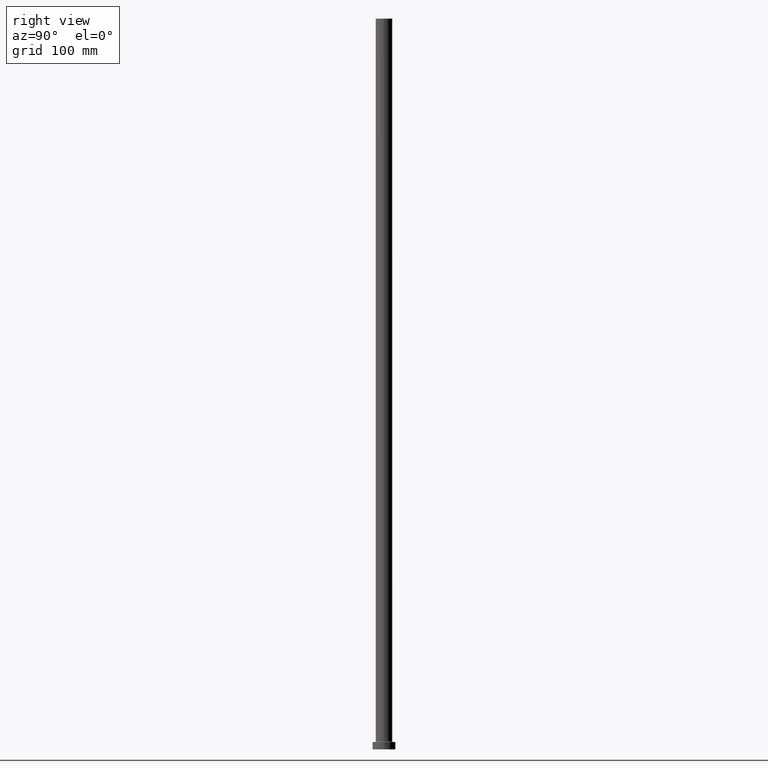
[diagram: clean part render]
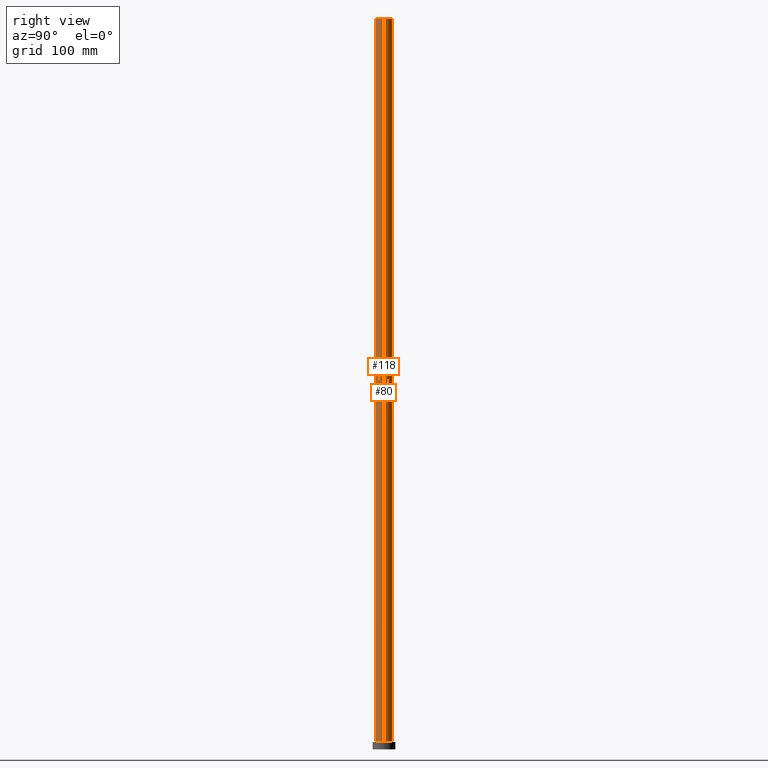
[diagram: same view with one multi-face feature highlighted, each face labeled with its STEP entity id]
A machine part, right view. The highlighted faces form ONE feature: a constant-radius fillet chain: 2 tangent blend faces with common blend radius 8 mm. The faces share edges in the B-rep.
Their STEP definitions:
[1] entity #80 (Cylinder):
#34 = CARTESIAN_POINT ( 'NONE',  ( 8.000000000000000000, 9.797174393178825657E-16, 700.0000000000000000 ) ) ;
#35 = VERTEX_POINT ( 'NONE', #205 ) ;
#38 = VECTOR ( 'NONE', #457, 1000.000000000000000 ) ;
#78 = DIRECTION ( 'NONE',  ( 0.000000000000000000, 0.000000000000000000, 1.000000000000000000 ) ) ;
#80 = ADVANCED_FACE ( 'NONE', ( #431 ), #113, .T. ) ;
#81 = CARTESIAN_POINT ( 'NONE',  ( 8.000000000000000000, 9.797174393178825657E-16, 7.700000000000040146 ) ) ;
#90 = AXIS2_PLACEMENT_3D ( 'NONE', #372, #341, #378 ) ;
#107 = AXIS2_PLACEMENT_3D ( 'NONE', #401, #78, #261 ) ;
#111 = CARTESIAN_POINT ( 'NONE',  ( 8.000000000000000000, 9.797174393178825657E-16, 700.0000000000000000 ) ) ;
#113 = CYLINDRICAL_SURFACE ( 'NONE', #247, 8.000000000000000000 ) ;
#121 = DIRECTION ( 'NONE',  ( -0.000000000000000000, -0.000000000000000000, -1.000000000000000000 ) ) ;
#122 = VECTOR ( 'NONE', #121, 1000.000000000000000 ) ;
#141 = LINE ( 'NONE', #382, #122 ) ;
#171 = VERTEX_POINT ( 'NONE', #34 ) ;
#175 = EDGE_LOOP ( 'NONE', ( #390, #202, #421, #354 ) ) ;
#183 = EDGE_CURVE ( 'NONE', #35, #307, #141, .T. ) ;
#185 = LINE ( 'NONE', #111, #38 ) ;
#186 = EDGE_CURVE ( 'NONE', #171, #455, #185, .T. ) ;
#200 = EDGE_CURVE ( 'NONE', #455, #307, #340, .T. ) ;
#202 = ORIENTED_EDGE ( 'NONE', *, *, #186, .T. ) ;
#205 = CARTESIAN_POINT ( 'NONE',  ( -8.000000000000000000, 0.000000000000000000, 700.0000000000000000 ) ) ;
#247 = AXIS2_PLACEMENT_3D ( 'NONE', #258, #398, #400 ) ;
#258 = CARTESIAN_POINT ( 'NONE',  ( 0.000000000000000000, 0.000000000000000000, 700.0000000000000000 ) ) ;
#261 = DIRECTION ( 'NONE',  ( 1.000000000000000000, 0.000000000000000000, 0.000000000000000000 ) ) ;
#265 = CIRCLE ( 'NONE', #107, 8.000000000000000000 ) ;
#307 = VERTEX_POINT ( 'NONE', #381 ) ;
#340 = CIRCLE ( 'NONE', #90, 8.000000000000000000 ) ;
#341 = DIRECTION ( 'NONE',  ( 0.000000000000000000, 0.000000000000000000, 1.000000000000000000 ) ) ;
#354 = ORIENTED_EDGE ( 'NONE', *, *, #183, .F. ) ;
#372 = CARTESIAN_POINT ( 'NONE',  ( 0.000000000000000000, 0.000000000000000000, 7.700000000000040146 ) ) ;
#378 = DIRECTION ( 'NONE',  ( 1.000000000000000000, 0.000000000000000000, 0.000000000000000000 ) ) ;
#381 = CARTESIAN_POINT ( 'NONE',  ( -8.000000000000000000, 0.000000000000000000, 7.700000000000040146 ) ) ;
#382 = CARTESIAN_POINT ( 'NONE',  ( -8.000000000000000000, 0.000000000000000000, 700.0000000000000000 ) ) ;
#390 = ORIENTED_EDGE ( 'NONE', *, *, #445, .F. ) ;
#398 = DIRECTION ( 'NONE',  ( -0.000000000000000000, -0.000000000000000000, -1.000000000000000000 ) ) ;
#400 = DIRECTION ( 'NONE',  ( -1.000000000000000000, 0.000000000000000000, 0.000000000000000000 ) ) ;
#401 = CARTESIAN_POINT ( 'NONE',  ( 0.000000000000000000, 0.000000000000000000, 700.0000000000000000 ) ) ;
#421 = ORIENTED_EDGE ( 'NONE', *, *, #200, .T. ) ;
#431 = FACE_OUTER_BOUND ( 'NONE', #175, .T. ) ;
#445 = EDGE_CURVE ( 'NONE', #171, #35, #265, .T. ) ;
#455 = VERTEX_POINT ( 'NONE', #81 ) ;
#457 = DIRECTION ( 'NONE',  ( -0.000000000000000000, -0.000000000000000000, -1.000000000000000000 ) ) ;
[2] entity #118 (Cylinder):
#31 = EDGE_CURVE ( 'NONE', #307, #455, #145, .T. ) ;
#34 = CARTESIAN_POINT ( 'NONE',  ( 8.000000000000000000, 9.797174393178825657E-16, 700.0000000000000000 ) ) ;
#35 = VERTEX_POINT ( 'NONE', #205 ) ;
#38 = VECTOR ( 'NONE', #457, 1000.000000000000000 ) ;
#53 = DIRECTION ( 'NONE',  ( 1.000000000000000000, 0.000000000000000000, 0.000000000000000000 ) ) ;
#63 = DIRECTION ( 'NONE',  ( 0.000000000000000000, 0.000000000000000000, 1.000000000000000000 ) ) ;
#75 = EDGE_LOOP ( 'NONE', ( #317, #451, #416, #217 ) ) ;
#81 = CARTESIAN_POINT ( 'NONE',  ( 8.000000000000000000, 9.797174393178825657E-16, 7.700000000000040146 ) ) ;
#100 = CYLINDRICAL_SURFACE ( 'NONE', #291, 8.000000000000000000 ) ;
#105 = FACE_OUTER_BOUND ( 'NONE', #75, .T. ) ;
#111 = CARTESIAN_POINT ( 'NONE',  ( 8.000000000000000000, 9.797174393178825657E-16, 700.0000000000000000 ) ) ;
#118 = ADVANCED_FACE ( 'NONE', ( #105 ), #100, .T. ) ;
#121 = DIRECTION ( 'NONE',  ( -0.000000000000000000, -0.000000000000000000, -1.000000000000000000 ) ) ;
#122 = VECTOR ( 'NONE', #121, 1000.000000000000000 ) ;
#132 = EDGE_CURVE ( 'NONE', #35, #171, #172, .T. ) ;
#141 = LINE ( 'NONE', #382, #122 ) ;
#145 = CIRCLE ( 'NONE', #426, 8.000000000000000000 ) ;
#146 = AXIS2_PLACEMENT_3D ( 'NONE', #248, #343, #178 ) ;
#171 = VERTEX_POINT ( 'NONE', #34 ) ;
#172 = CIRCLE ( 'NONE', #146, 8.000000000000000000 ) ;
#178 = DIRECTION ( 'NONE',  ( 1.000000000000000000, 0.000000000000000000, 0.000000000000000000 ) ) ;
#183 = EDGE_CURVE ( 'NONE', #35, #307, #141, .T. ) ;
#185 = LINE ( 'NONE', #111, #38 ) ;
#186 = EDGE_CURVE ( 'NONE', #171, #455, #185, .T. ) ;
#205 = CARTESIAN_POINT ( 'NONE',  ( -8.000000000000000000, 0.000000000000000000, 700.0000000000000000 ) ) ;
#215 = DIRECTION ( 'NONE',  ( -0.000000000000000000, -0.000000000000000000, -1.000000000000000000 ) ) ;
#217 = ORIENTED_EDGE ( 'NONE', *, *, #31, .T. ) ;
#219 = CARTESIAN_POINT ( 'NONE',  ( 0.000000000000000000, 0.000000000000000000, 700.0000000000000000 ) ) ;
#248 = CARTESIAN_POINT ( 'NONE',  ( 0.000000000000000000, 0.000000000000000000, 700.0000000000000000 ) ) ;
#267 = CARTESIAN_POINT ( 'NONE',  ( 0.000000000000000000, 0.000000000000000000, 7.700000000000040146 ) ) ;
#291 = AXIS2_PLACEMENT_3D ( 'NONE', #219, #215, #314 ) ;
#307 = VERTEX_POINT ( 'NONE', #381 ) ;
#314 = DIRECTION ( 'NONE',  ( -1.000000000000000000, 0.000000000000000000, 0.000000000000000000 ) ) ;
#317 = ORIENTED_EDGE ( 'NONE', *, *, #186, .F. ) ;
#343 = DIRECTION ( 'NONE',  ( 0.000000000000000000, 0.000000000000000000, 1.000000000000000000 ) ) ;
#381 = CARTESIAN_POINT ( 'NONE',  ( -8.000000000000000000, 0.000000000000000000, 7.700000000000040146 ) ) ;
#382 = CARTESIAN_POINT ( 'NONE',  ( -8.000000000000000000, 0.000000000000000000, 700.0000000000000000 ) ) ;
#416 = ORIENTED_EDGE ( 'NONE', *, *, #183, .T. ) ;
#426 = AXIS2_PLACEMENT_3D ( 'NONE', #267, #63, #53 ) ;
#451 = ORIENTED_EDGE ( 'NONE', *, *, #132, .F. ) ;
#455 = VERTEX_POINT ( 'NONE', #81 ) ;
#457 = DIRECTION ( 'NONE',  ( -0.000000000000000000, -0.000000000000000000, -1.000000000000000000 ) ) ;